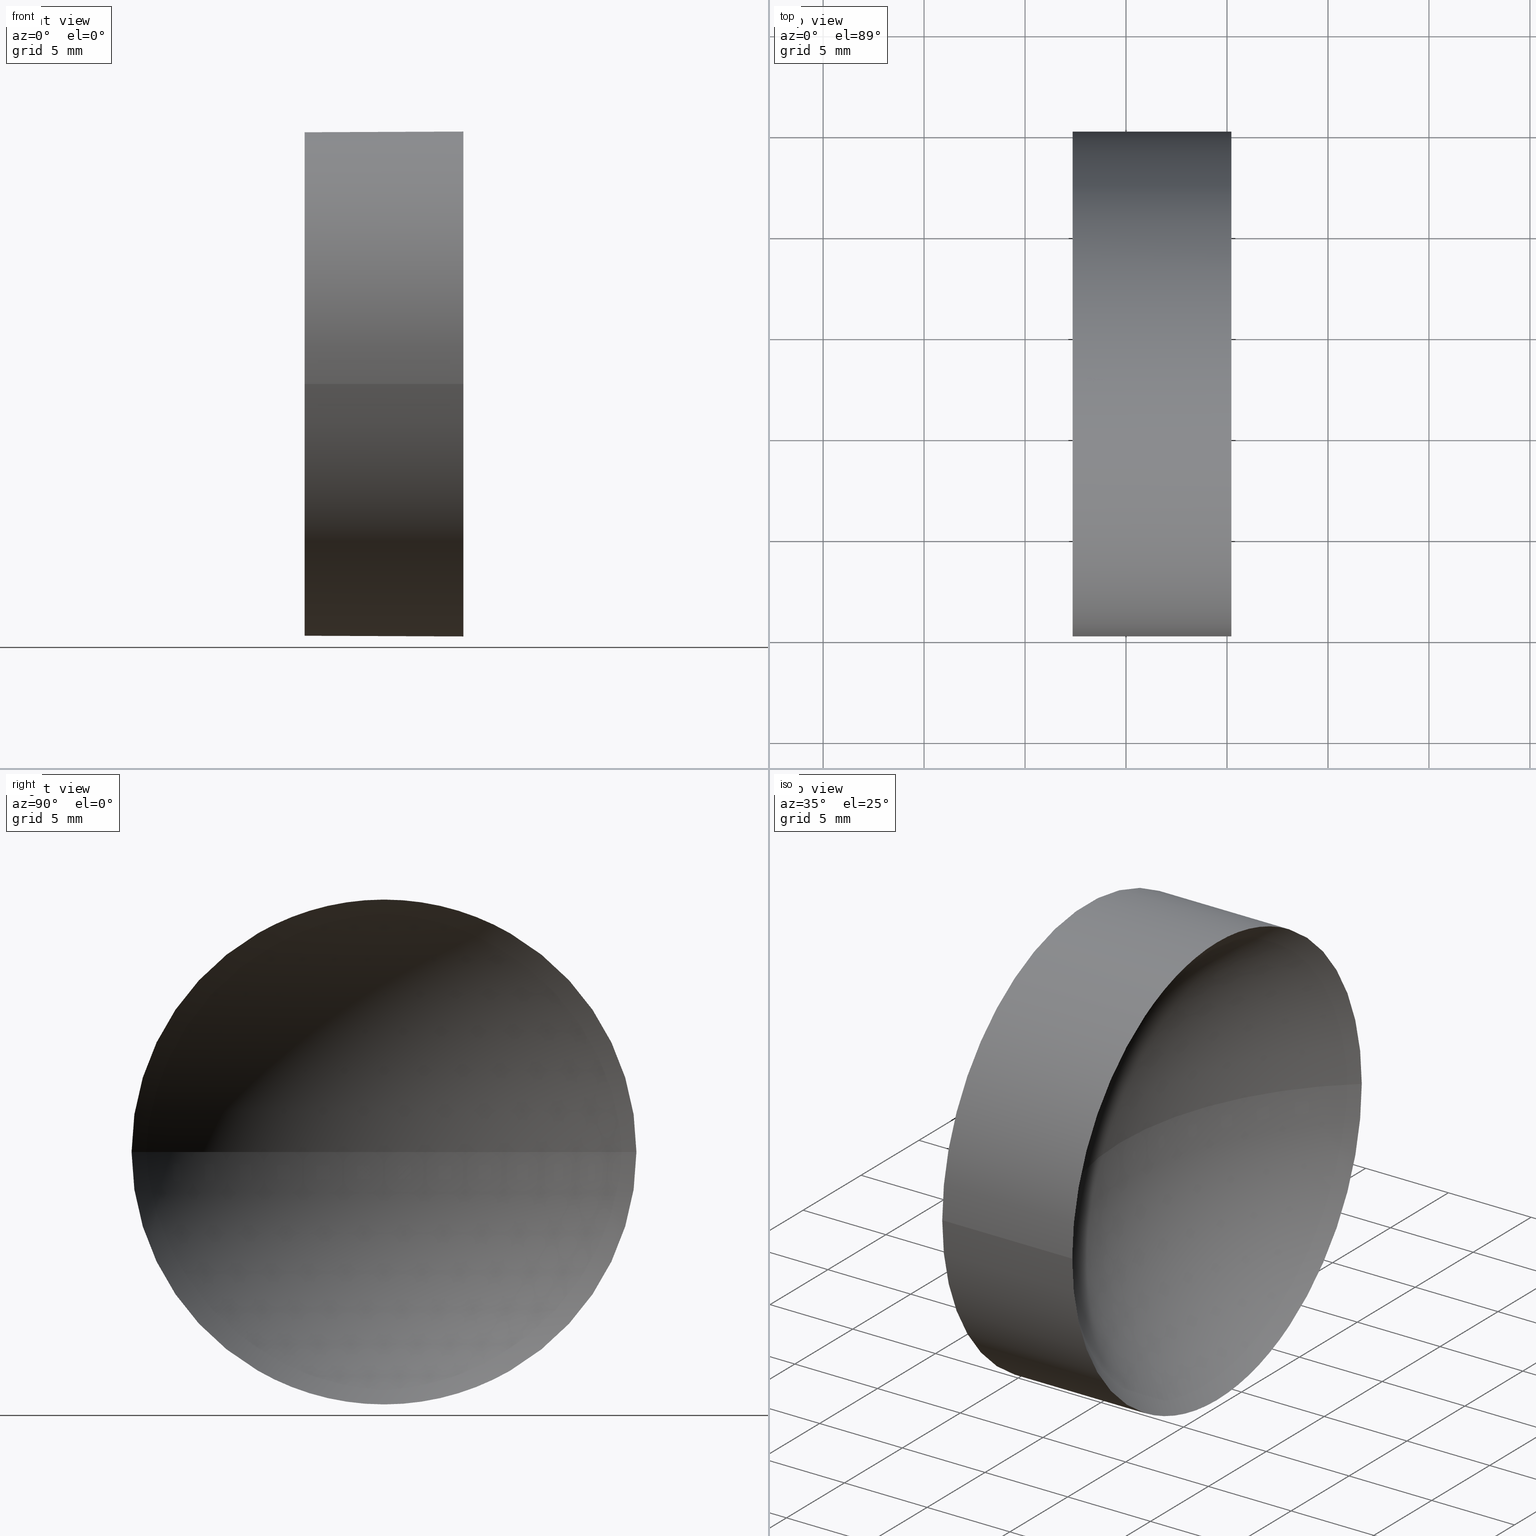
[diagram: canonical four-view strip — front | top / right | iso, engineering-drawing reading convention]
A machine part, canonical four-view strip (front | top / right | iso — engineering-drawing reading convention). The complete STEP part file that produces these views, byte-faithful:
ISO-10303-21;
HEADER;
FILE_DESCRIPTION (( 'STEP AP214' ),
    '1' );
FILE_NAME ('120150.STEP',
    '2019-06-20T02:41:45',
    ( '' ),
    ( '' ),
    'SwSTEP 2.0',
    'SolidWorks 2016',
    '' );
FILE_SCHEMA (( 'AUTOMOTIVE_DESIGN' ));
ENDSEC;

DATA;
#1 = DIRECTION ( 'NONE',  ( 1.000000000000000000, 0.0000000000000000000, 0.0000000000000000000 ) ) ;
#2 = VECTOR ( 'NONE', #7, 1000.000000000000000 ) ;
#3 =( LENGTH_UNIT ( ) NAMED_UNIT ( * ) SI_UNIT ( .MILLI., .METRE. ) );
#4 = PRODUCT_RELATED_PRODUCT_CATEGORY ( 'part', '', ( #86 ) ) ;
#5 = EDGE_CURVE ( 'NONE', #29, #41, #25, .T. ) ;
#6 = PRESENTATION_STYLE_ASSIGNMENT (( #152 ) ) ;
#7 = DIRECTION ( 'NONE',  ( -1.000000000000000000, 4.853228644174421400E-016, -0.0000000000000000000 ) ) ;
#8 = PRESENTATION_LAYER_ASSIGNMENT (  '', '', ( #34 ) ) ;
#9 = CARTESIAN_POINT ( 'NONE',  ( 57.35819015802111700, 45.07872591329309100, 1.530808498934191900E-015 ) ) ;
#10 = DIRECTION ( 'NONE',  ( -5.551115123125784700E-016, -1.000000000000000000, 0.0000000000000000000 ) ) ;
#11 = DIRECTION ( 'NONE',  ( -1.000000000000000000, 4.853228644174421400E-016, -0.0000000000000000000 ) ) ;
#12 = UNCERTAINTY_MEASURE_WITH_UNIT (LENGTH_MEASURE( 1.000000000000000100E-005 ), #70, 'distance_accuracy_value', 'NONE');
#13 = EDGE_LOOP ( 'NONE', ( #54, #148, #27, #87 ) ) ;
#14 = EDGE_LOOP ( 'NONE', ( #89, #163, #98, #91 ) ) ;
#15 = FACE_OUTER_BOUND ( 'NONE', #132, .T. ) ;
#16 = ORIENTED_EDGE ( 'NONE', *, *, #28, .T. ) ;
#17 = CARTESIAN_POINT ( 'NONE',  ( 55.00739462442118800, 45.07872591329309100, 1.530808498934191500E-015 ) ) ;
#18 = FILL_AREA_STYLE_COLOUR ( '', #162 ) ;
#19 = EDGE_CURVE ( 'NONE', #154, #118, #66, .T. ) ;
#20 = APPLICATION_PROTOCOL_DEFINITION ( 'draft international standard', 'automotive_design', 1998, #68 ) ;
#21 = CARTESIAN_POINT ( 'NONE',  ( 65.21363783927023400, 45.07872591329309100, 1.530808498934191500E-015 ) ) ;
#22 =( NAMED_UNIT ( * ) SI_UNIT ( $, .STERADIAN. ) SOLID_ANGLE_UNIT ( ) );
#23 = FILL_AREA_STYLE ('',( #95 ) ) ;
#24 = AXIS2_PLACEMENT_3D ( 'NONE', #102, #60, #50 ) ;
#25 = CIRCLE ( 'NONE', #115, 12.49999999999999600 ) ;
#26 = CIRCLE ( 'NONE', #80, 12.50000000000000400 ) ;
#27 = ORIENTED_EDGE ( 'NONE', *, *, #59, .T. ) ;
#28 = EDGE_CURVE ( 'NONE', #41, #29, #97, .T. ) ;
#29 = VERTEX_POINT ( 'NONE', #62 ) ;
#30 = CARTESIAN_POINT ( 'NONE',  ( 65.21363783927022000, 32.57872591329309100, 0.0000000000000000000 ) ) ;
#31 = AXIS2_PLACEMENT_3D ( 'NONE', #139, #156, #1 ) ;
#32 = SPHERICAL_SURFACE ( 'NONE', #24, 16.27000000000000300 ) ;
#33 = CARTESIAN_POINT ( 'NONE',  ( 65.21363783927022000, 32.57872591329309100, 0.0000000000000000000 ) ) ;
#34 = STYLED_ITEM ( 'NONE', ( #164 ), #43 ) ;
#35 = DIRECTION ( 'NONE',  ( 0.0000000000000000000, 0.0000000000000000000, 1.000000000000000000 ) ) ;
#36 = ADVANCED_FACE ( 'NONE', ( #74 ), #32, .F. ) ;
#37 = EDGE_CURVE ( 'NONE', #154, #145, #26, .T. ) ;
#38 = SHAPE_DEFINITION_REPRESENTATION ( #135, #161 ) ;
#39 = SURFACE_STYLE_FILL_AREA ( #23 ) ;
#40 = EDGE_CURVE ( 'NONE', #145, #41, #100, .T. ) ;
#41 = VERTEX_POINT ( 'NONE', #9 ) ;
#42 =( GEOMETRIC_REPRESENTATION_CONTEXT ( 3 ) GLOBAL_UNCERTAINTY_ASSIGNED_CONTEXT ( ( #12 ) ) GLOBAL_UNIT_ASSIGNED_CONTEXT ( ( #70, #69, #52 ) ) REPRESENTATION_CONTEXT ( 'NONE', 'WORKASPACE' ) );
#43 = MANIFOLD_SOLID_BREP ( '��ת1', #49 ) ;
#44 = SURFACE_STYLE_USAGE ( .BOTH. , #78 ) ;
#45 = CARTESIAN_POINT ( 'NONE',  ( 75.62819015802112700, 32.57872591329309100, 0.0000000000000000000 ) ) ;
#46 =( NAMED_UNIT ( * ) SI_UNIT ( $, .STERADIAN. ) SOLID_ANGLE_UNIT ( ) );
#47 = FACE_OUTER_BOUND ( 'NONE', #14, .T. ) ;
#48 = AXIS2_PLACEMENT_3D ( 'NONE', #45, #79, #136 ) ;
#49 = CLOSED_SHELL ( 'NONE', ( #112, #36, #142, #153, #157 ) ) ;
#50 = DIRECTION ( 'NONE',  ( -8.529679045983069200E-016, -1.000000000000000000, 0.0000000000000000000 ) ) ;
#51 = SURFACE_SIDE_STYLE ('',( #39 ) ) ;
#52 =( NAMED_UNIT ( * ) SI_UNIT ( $, .STERADIAN. ) SOLID_ANGLE_UNIT ( ) );
#53 = CARTESIAN_POINT ( 'NONE',  ( 75.62819015802112700, 32.57872591329309100, 0.0000000000000000000 ) ) ;
#54 = ORIENTED_EDGE ( 'NONE', *, *, #40, .F. ) ;
#55 = APPLICATION_CONTEXT ( 'automotive_design' ) ;
#56 = MECHANICAL_DESIGN_GEOMETRIC_PRESENTATION_REPRESENTATION (  '', ( #34 ), #160 ) ;
#57 = VECTOR ( 'NONE', #119, 1000.000000000000000 ) ;
#58 = ORIENTED_EDGE ( 'NONE', *, *, #155, .F. ) ;
#59 = EDGE_CURVE ( 'NONE', #154, #29, #85, .T. ) ;
#60 = DIRECTION ( 'NONE',  ( 0.0000000000000000000, 0.0000000000000000000, 1.000000000000000000 ) ) ;
#61 = STYLED_ITEM ( 'NONE', ( #6 ), #161 ) ;
#62 = CARTESIAN_POINT ( 'NONE',  ( 57.35819015802110200, 20.07872591329309800, 0.0000000000000000000 ) ) ;
#63 = DIRECTION ( 'NONE',  ( -1.000000000000000000, 4.853228644174421400E-016, -0.0000000000000000000 ) ) ;
#64 = DIRECTION ( 'NONE',  ( 0.0000000000000000000, -1.000000000000000000, 0.0000000000000000000 ) ) ;
#65 = DIRECTION ( 'NONE',  ( -1.000000000000000000, 4.853228644174421400E-016, -0.0000000000000000000 ) ) ;
#66 = CIRCLE ( 'NONE', #48, 16.27000000000000700 ) ;
#67 = ORIENTED_EDGE ( 'NONE', *, *, #5, .T. ) ;
#68 = APPLICATION_CONTEXT ( 'automotive_design' ) ;
#69 =( NAMED_UNIT ( * ) PLANE_ANGLE_UNIT ( ) SI_UNIT ( $, .RADIAN. ) );
#70 =( LENGTH_UNIT ( ) NAMED_UNIT ( * ) SI_UNIT ( .MILLI., .METRE. ) );
#71 = CARTESIAN_POINT ( 'NONE',  ( 55.00739462442118100, 32.57872591329309800, 0.0000000000000000000 ) ) ;
#72 = SURFACE_STYLE_FILL_AREA ( #81 ) ;
#73 = AXIS2_PLACEMENT_3D ( 'NONE', #122, #121, #10 ) ;
#74 = FACE_OUTER_BOUND ( 'NONE', #149, .T. ) ;
#75 = AXIS2_PLACEMENT_3D ( 'NONE', #33, #125, #106 ) ;
#76 = PRODUCT_DEFINITION_CONTEXT ( 'detailed design', #68, 'design' ) ;
#77 =( LENGTH_UNIT ( ) NAMED_UNIT ( * ) SI_UNIT ( .MILLI., .METRE. ) );
#78 = SURFACE_SIDE_STYLE ('',( #72 ) ) ;
#79 = DIRECTION ( 'NONE',  ( 0.0000000000000000000, -0.0000000000000000000, -1.000000000000000000 ) ) ;
#80 = AXIS2_PLACEMENT_3D ( 'NONE', #30, #63, #64 ) ;
#81 = FILL_AREA_STYLE ('',( #18 ) ) ;
#82 = CARTESIAN_POINT ( 'NONE',  ( 57.35819015802111700, 32.57872591329309100, 0.0000000000000000000 ) ) ;
#83 = DIRECTION ( 'NONE',  ( 4.853228644174421400E-016, 1.000000000000000000, 0.0000000000000000000 ) ) ;
#84 = AXIS2_PLACEMENT_3D ( 'NONE', #82, #165, #83 ) ;
#85 = LINE ( 'NONE', #137, #2 ) ;
#86 = PRODUCT ( '120150', '120150', '', ( #141 ) ) ;
#87 = ORIENTED_EDGE ( 'NONE', *, *, #28, .F. ) ;
#88 = EDGE_LOOP ( 'NONE', ( #58, #151, #127 ) ) ;
#89 = ORIENTED_EDGE ( 'NONE', *, *, #37, .T. ) ;
#90 = EDGE_CURVE ( 'NONE', #145, #154, #159, .T. ) ;
#91 = ORIENTED_EDGE ( 'NONE', *, *, #59, .F. ) ;
#92 = APPLICATION_PROTOCOL_DEFINITION ( 'draft international standard', 'automotive_design', 1998, #55 ) ;
#93 = CARTESIAN_POINT ( 'NONE',  ( 59.35819015802111700, 32.57872591329309800, 0.0000000000000000000 ) ) ;
#94 = SPHERICAL_SURFACE ( 'NONE', #96, 16.27000000000000300 ) ;
#95 = FILL_AREA_STYLE_COLOUR ( '', #101 ) ;
#96 = AXIS2_PLACEMENT_3D ( 'NONE', #104, #35, #143 ) ;
#97 = CIRCLE ( 'NONE', #73, 12.49999999999999600 ) ;
#98 = ORIENTED_EDGE ( 'NONE', *, *, #5, .F. ) ;
#99 = PRODUCT_DEFINITION_FORMATION_WITH_SPECIFIED_SOURCE ( '�κ�', '', #86, .NOT_KNOWN. ) ;
#100 = LINE ( 'NONE', #17, #57 ) ;
#101 = COLOUR_RGB ( '',1.000000000000000000, 1.000000000000000000, 1.000000000000000000 ) ;
#102 = CARTESIAN_POINT ( 'NONE',  ( 75.62819015802112700, 32.57872591329309100, 0.0000000000000000000 ) ) ;
#103 = AXIS2_PLACEMENT_3D ( 'NONE', #107, #11, #128 ) ;
#104 = CARTESIAN_POINT ( 'NONE',  ( 75.62819015802112700, 32.57872591329309100, 0.0000000000000000000 ) ) ;
#105 = UNCERTAINTY_MEASURE_WITH_UNIT (LENGTH_MEASURE( 1.000000000000000100E-005 ), #77, 'distance_accuracy_value', 'NONE');
#106 = DIRECTION ( 'NONE',  ( 0.0000000000000000000, -1.000000000000000000, 0.0000000000000000000 ) ) ;
#107 = CARTESIAN_POINT ( 'NONE',  ( 55.00739462442118100, 32.57872591329309800, 0.0000000000000000000 ) ) ;
#108 = CIRCLE ( 'NONE', #117, 16.27000000000000300 ) ;
#109 = UNCERTAINTY_MEASURE_WITH_UNIT (LENGTH_MEASURE( 1.000000000000000100E-005 ), #3, 'distance_accuracy_value', 'NONE');
#110 = ORIENTED_EDGE ( 'NONE', *, *, #155, .T. ) ;
#111 = CARTESIAN_POINT ( 'NONE',  ( 57.35819015802111000, 32.57872591329309800, 0.0000000000000000000 ) ) ;
#112 = ADVANCED_FACE ( 'NONE', ( #47 ), #116, .T. ) ;
#113 = ORIENTED_EDGE ( 'NONE', *, *, #19, .F. ) ;
#114 = DIRECTION ( 'NONE',  ( 0.0000000000000000000, -1.000000000000000000, -1.224646799147353200E-016 ) ) ;
#115 = AXIS2_PLACEMENT_3D ( 'NONE', #111, #150, #120 ) ;
#116 = CYLINDRICAL_SURFACE ( 'NONE', #103, 12.50000000000000000 ) ;
#117 = AXIS2_PLACEMENT_3D ( 'NONE', #53, #158, #114 ) ;
#118 = VERTEX_POINT ( 'NONE', #93 ) ;
#119 = DIRECTION ( 'NONE',  ( -1.000000000000000000, 4.853228644174421400E-016, -0.0000000000000000000 ) ) ;
#120 = DIRECTION ( 'NONE',  ( -5.551115123125784700E-016, -1.000000000000000000, 0.0000000000000000000 ) ) ;
#121 = DIRECTION ( 'NONE',  ( -1.000000000000000000, 4.853228644174421400E-016, -0.0000000000000000000 ) ) ;
#122 = CARTESIAN_POINT ( 'NONE',  ( 57.35819015802111000, 32.57872591329309800, 0.0000000000000000000 ) ) ;
#123 =( NAMED_UNIT ( * ) PLANE_ANGLE_UNIT ( ) SI_UNIT ( $, .RADIAN. ) );
#124 = AXIS2_PLACEMENT_3D ( 'NONE', #71, #65, #129 ) ;
#125 = DIRECTION ( 'NONE',  ( -1.000000000000000000, 4.853228644174421400E-016, -0.0000000000000000000 ) ) ;
#126 =( NAMED_UNIT ( * ) PLANE_ANGLE_UNIT ( ) SI_UNIT ( $, .RADIAN. ) );
#127 = ORIENTED_EDGE ( 'NONE', *, *, #19, .T. ) ;
#128 = DIRECTION ( 'NONE',  ( -5.551115123125782700E-016, -1.000000000000000000, 0.0000000000000000000 ) ) ;
#129 = DIRECTION ( 'NONE',  ( -5.551115123125782700E-016, -1.000000000000000000, 0.0000000000000000000 ) ) ;
#130 = CYLINDRICAL_SURFACE ( 'NONE', #124, 12.50000000000000000 ) ;
#131 = ORIENTED_EDGE ( 'NONE', *, *, #90, .F. ) ;
#132 = EDGE_LOOP ( 'NONE', ( #67, #16 ) ) ;
#133 = PRESENTATION_LAYER_ASSIGNMENT (  '', '', ( #61 ) ) ;
#134 =( GEOMETRIC_REPRESENTATION_CONTEXT ( 3 ) GLOBAL_UNCERTAINTY_ASSIGNED_CONTEXT ( ( #109 ) ) GLOBAL_UNIT_ASSIGNED_CONTEXT ( ( #3, #126, #22 ) ) REPRESENTATION_CONTEXT ( 'NONE', 'WORKASPACE' ) );
#135 = PRODUCT_DEFINITION_SHAPE ( 'NONE', 'NONE',  #140 ) ;
#136 = DIRECTION ( 'NONE',  ( -1.000000000000000000, 0.0000000000000000000, 0.0000000000000000000 ) ) ;
#137 = CARTESIAN_POINT ( 'NONE',  ( 55.00739462442117400, 20.07872591329309500, 0.0000000000000000000 ) ) ;
#138 = CARTESIAN_POINT ( 'NONE',  ( 65.21363783927020600, 20.07872591329308400, 0.0000000000000000000 ) ) ;
#139 = CARTESIAN_POINT ( 'NONE',  ( 0.0000000000000000000, 0.0000000000000000000, 0.0000000000000000000 ) ) ;
#140 = PRODUCT_DEFINITION ( 'δ֪', '', #99, #76 ) ;
#141 = PRODUCT_CONTEXT ( 'NONE', #55, 'mechanical' ) ;
#142 = ADVANCED_FACE ( 'NONE', ( #147 ), #94, .F. ) ;
#143 = DIRECTION ( 'NONE',  ( -8.529679045983069200E-016, -1.000000000000000000, 0.0000000000000000000 ) ) ;
#144 = FACE_OUTER_BOUND ( 'NONE', #13, .T. ) ;
#145 = VERTEX_POINT ( 'NONE', #21 ) ;
#146 = MECHANICAL_DESIGN_GEOMETRIC_PRESENTATION_REPRESENTATION (  '', ( #61 ), #42 ) ;
#147 = FACE_OUTER_BOUND ( 'NONE', #88, .T. ) ;
#148 = ORIENTED_EDGE ( 'NONE', *, *, #90, .T. ) ;
#149 = EDGE_LOOP ( 'NONE', ( #131, #110, #113 ) ) ;
#150 = DIRECTION ( 'NONE',  ( -1.000000000000000000, 4.853228644174421400E-016, -0.0000000000000000000 ) ) ;
#151 = ORIENTED_EDGE ( 'NONE', *, *, #37, .F. ) ;
#152 = SURFACE_STYLE_USAGE ( .BOTH. , #51 ) ;
#153 = ADVANCED_FACE ( 'NONE', ( #144 ), #130, .T. ) ;
#154 = VERTEX_POINT ( 'NONE', #138 ) ;
#155 = EDGE_CURVE ( 'NONE', #145, #118, #108, .T. ) ;
#156 = DIRECTION ( 'NONE',  ( 0.0000000000000000000, 0.0000000000000000000, 1.000000000000000000 ) ) ;
#157 = ADVANCED_FACE ( 'NONE', ( #15 ), #166, .F. ) ;
#158 = DIRECTION ( 'NONE',  ( -5.943490924618453600E-032, -1.224646799147353200E-016, 1.000000000000000000 ) ) ;
#159 = CIRCLE ( 'NONE', #75, 12.50000000000000400 ) ;
#160 =( GEOMETRIC_REPRESENTATION_CONTEXT ( 3 ) GLOBAL_UNCERTAINTY_ASSIGNED_CONTEXT ( ( #105 ) ) GLOBAL_UNIT_ASSIGNED_CONTEXT ( ( #77, #123, #46 ) ) REPRESENTATION_CONTEXT ( 'NONE', 'WORKASPACE' ) );
#161 = ADVANCED_BREP_SHAPE_REPRESENTATION ( '120150', ( #43, #31 ), #134 ) ;
#162 = COLOUR_RGB ( '',1.000000000000000000, 1.000000000000000000, 1.000000000000000000 ) ;
#163 = ORIENTED_EDGE ( 'NONE', *, *, #40, .T. ) ;
#164 = PRESENTATION_STYLE_ASSIGNMENT (( #44 ) ) ;
#165 = DIRECTION ( 'NONE',  ( 1.000000000000000000, -4.853228644174421400E-016, 0.0000000000000000000 ) ) ;
#166 = PLANE ( 'NONE',  #84 ) ;
ENDSEC;
END-ISO-10303-21;
